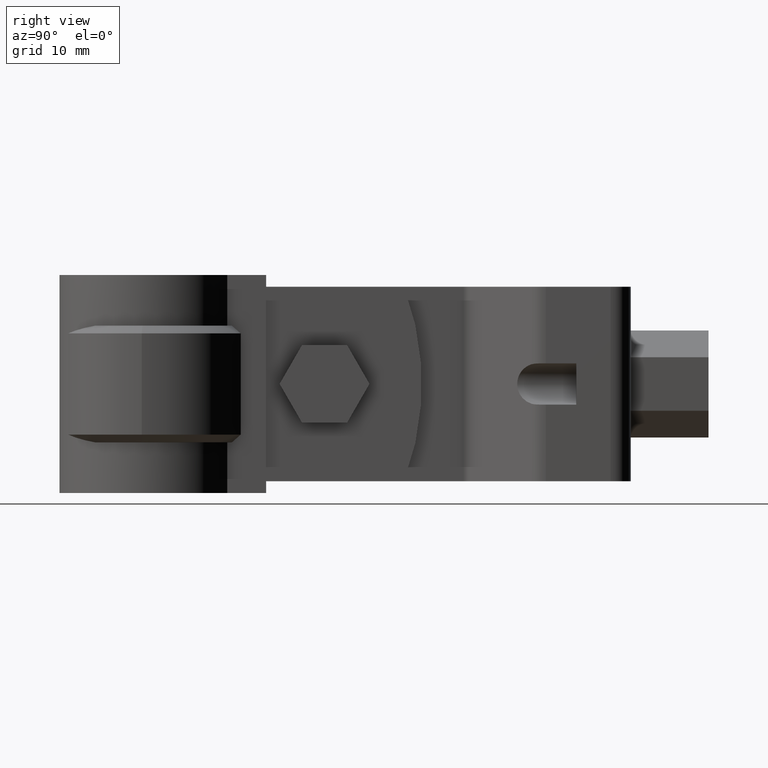
[diagram: clean part render]
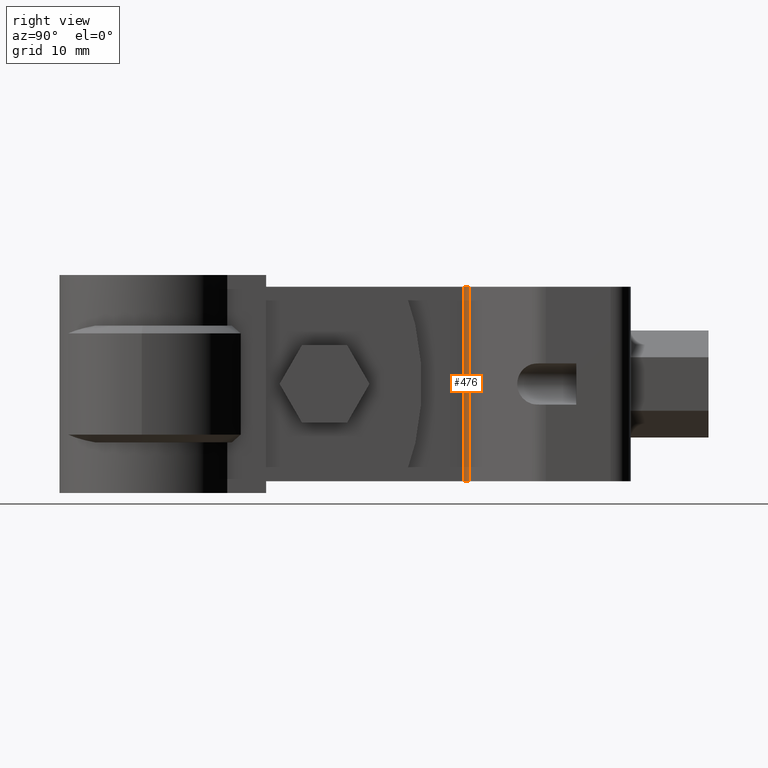
[diagram: same view with one face highlighted and labeled with its STEP entity id]
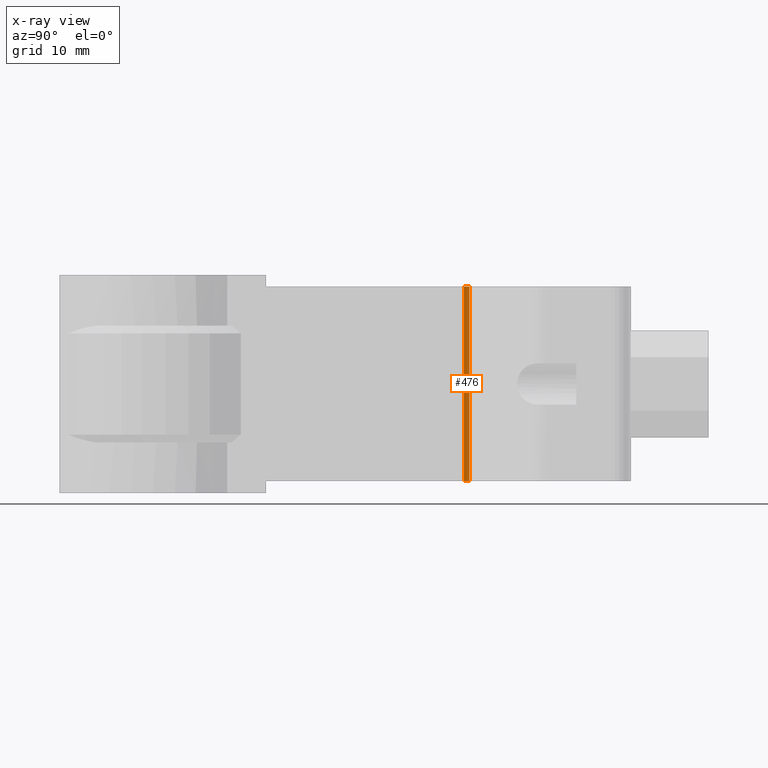
[diagram: x-ray of the same camera — body ghosted, the highlighted face saturated]
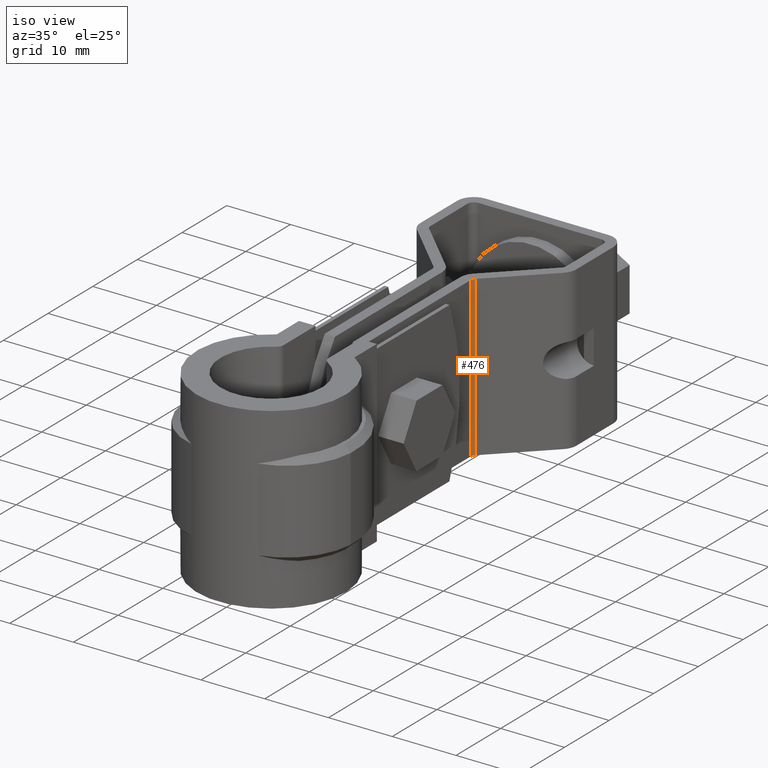
[diagram: same view with one face highlighted and labeled with its STEP entity id]
A machine part, right view. The second image highlights one B-rep face of the part: STEP entity #476.
The next image is the same camera in x-ray: the body ghosted, the highlighted face saturated — about 0% of this face is hidden behind the body in this view.
A second angle (iso view) of the same face is appended — the face is thin or edge-on in the first view.
In plain terms, the highlighted cylindrical surface (edge-blend (fillet) strip) has radius 1 mm, axis along (-0, 0, 1).
Its self-contained STEP definition (entity closure, byte-faithful):
#476 = ADVANCED_FACE( '', ( #863 ), #864, .F. );
#863 = FACE_OUTER_BOUND( '', #1889, .T. );
#864 = CYLINDRICAL_SURFACE( '', #1890, 1.00000000000000 );
#1889 = EDGE_LOOP( '', ( #4342, #4343, #4344, #4345 ) );
#1890 = AXIS2_PLACEMENT_3D( '', #4346, #4347, #4348 );
#4342 = ORIENTED_EDGE( '', *, *, #5173, .T. );
#4343 = ORIENTED_EDGE( '', *, *, #5179, .T. );
#4344 = ORIENTED_EDGE( '', *, *, #5063, .T. );
#4345 = ORIENTED_EDGE( '', *, *, #5084, .T. );
#4346 = CARTESIAN_POINT( '', ( 3.99999999999923, 40.3496225055069, -6.17658701962398E-010 ) );
#4347 = DIRECTION( '', ( -2.12824032470429E-013, 5.16553044093226E-012, 1.00000000000000 ) );
#4348 = DIRECTION( '', ( -1.50449475639474E-013, 1.00000000000000, -5.16553044093229E-012 ) );
#5063 = EDGE_CURVE( '', #5898, #5896, #5899, .T. );
#5084 = EDGE_CURVE( '', #5896, #5935, #5937, .F. );
#5173 = EDGE_CURVE( '', #5935, #6078, #6080, .F. );
#5179 = EDGE_CURVE( '', #6078, #5898, #6087, .T. );
#5896 = VERTEX_POINT( '', #8360 );
#5898 = VERTEX_POINT( '', #8363 );
#5899 = CIRCLE( '', #8364, 0.999999999999998 );
#5935 = VERTEX_POINT( '', #8410 );
#5937 = LINE( '', #8413, #8414 );
#6078 = VERTEX_POINT( '', #8659 );
#6080 = CIRCLE( '', #8662, 0.999999999999998 );
#6087 = LINE( '', #8673, #8674 );
#8360 = CARTESIAN_POINT( '', ( 2.99999999999923, 40.3496225055067, -6.17880746567323E-010 ) );
#8363 = CARTESIAN_POINT( '', ( 3.30167616446862, 41.0654044700253, -6.21502849185163E-010 ) );
#8364 = AXIS2_PLACEMENT_3D( '', #9386, #9387, #9388 );
#8410 = CARTESIAN_POINT( '', ( 3.00000000000455, 40.3496225053776, -25.0000000006179 ) );
#8413 = CARTESIAN_POINT( '', ( 3.00000000000455, 40.3496225053776, -25.0000000006179 ) );
#8414 = VECTOR( '', #9427, 1000.00000000000 );
#8659 = CARTESIAN_POINT( '', ( 3.30167616447394, 41.0654044698961, -25.0000000006215 ) );
#8662 = AXIS2_PLACEMENT_3D( '', #9562, #9563, #9564 );
#8673 = CARTESIAN_POINT( '', ( 3.30167616446862, 41.0654044700253, -6.21516726972970E-010 ) );
#8674 = VECTOR( '', #9572, 1000.00000000000 );
#9386 = CARTESIAN_POINT( '', ( 3.99999999999923, 40.3496225055069, -6.17658701962398E-010 ) );
#9387 = DIRECTION( '', ( -2.12762802152738E-013, 5.16559017782481E-012, 1.00000000000000 ) );
#9388 = DIRECTION( '', ( 1.00000000000000, 1.50449475640573E-013, 2.12762802151961E-013 ) );
#9427 = DIRECTION( '', ( -2.12824032470429E-013, 5.16553044093226E-012, 1.00000000000000 ) );
#9562 = CARTESIAN_POINT( '', ( 4.00000000000455, 40.3496225053777, -25.0000000006177 ) );
#9563 = DIRECTION( '', ( -2.12762802152738E-013, 5.16559017782481E-012, 1.00000000000000 ) );
#9564 = DIRECTION( '', ( 1.00000000000000, 1.50449475640573E-013, 2.12762802151961E-013 ) );
#9572 = DIRECTION( '', ( -2.12824032470429E-013, 5.16553044093226E-012, 1.00000000000000 ) );